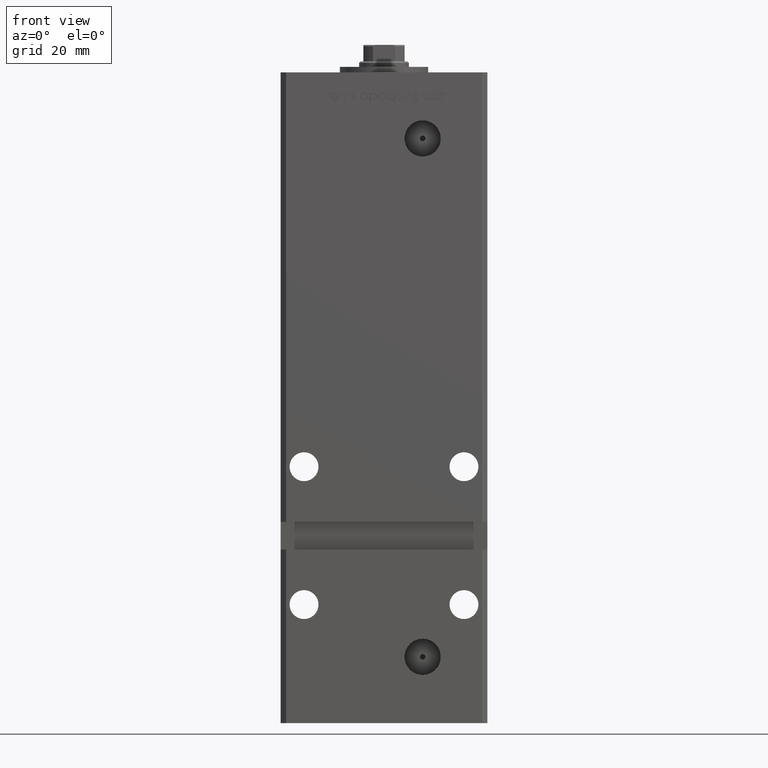
[diagram: clean part render]
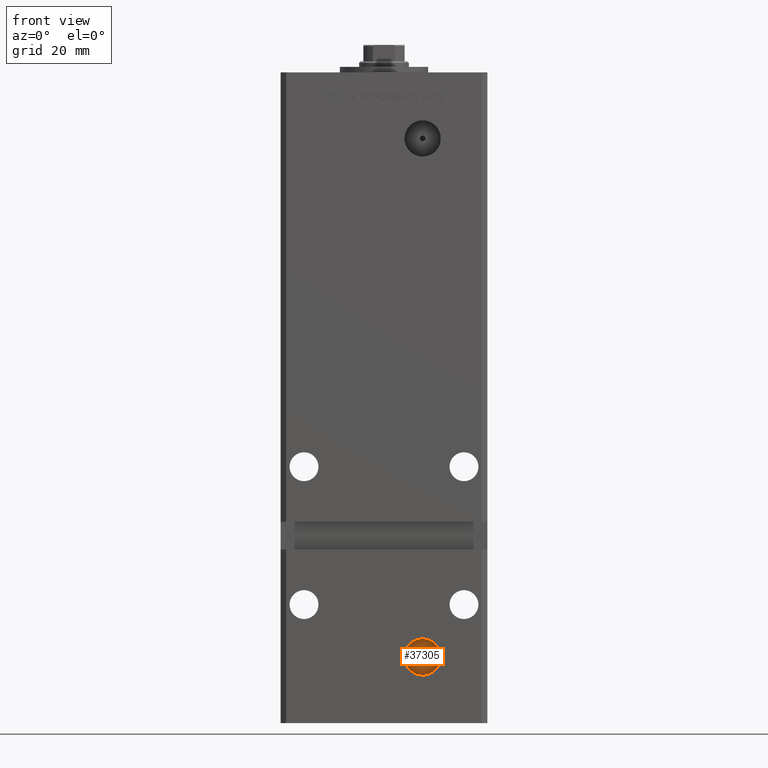
[diagram: same view with one face highlighted and labeled with its STEP entity id]
A machine part, front view. The second image highlights one B-rep face of the part: STEP entity #37305.
In plain terms, the highlighted planar face has unit normal (0, -1, 0).
Its self-contained STEP definition (entity closure, byte-faithful):
#1987 = EDGE_LOOP ( 'NONE', ( #10286, #41266 ) ) ;
#4337 = VERTEX_POINT ( 'NONE', #52843 ) ;
#4850 = EDGE_LOOP ( 'NONE', ( #41444, #25007 ) ) ;
#4863 = CIRCLE ( 'NONE', #35804, 6.579999999999998295 ) ;
#4871 = DIRECTION ( 'NONE',  ( 0.000000000000000000, 0.000000000000000000, -1.000000000000000000 ) ) ;
#7563 = CARTESIAN_POINT ( 'NONE',  ( 13.99999999999999112, -19.50000000000000355, 10.00000000000000888 ) ) ;
#7950 = AXIS2_PLACEMENT_3D ( 'NONE', #26077, #42467, #42732 ) ;
#10286 = ORIENTED_EDGE ( 'NONE', *, *, #31058, .T. ) ;
#10782 = DIRECTION ( 'NONE',  ( 0.000000000000000000, -1.000000000000000000, 0.000000000000000000 ) ) ;
#11118 = VERTEX_POINT ( 'NONE', #7563 ) ;
#12609 = CARTESIAN_POINT ( 'NONE',  ( 13.99999999999999112, -19.50000000000000355, 15.58000000000000718 ) ) ;
#15098 = CIRCLE ( 'NONE', #45160, 1.000000000000000888 ) ;
#15880 = EDGE_CURVE ( 'NONE', #22847, #41880, #48308, .T. ) ;
#16231 = EDGE_CURVE ( 'NONE', #4337, #11118, #32886, .T. ) ;
#18803 = AXIS2_PLACEMENT_3D ( 'NONE', #39798, #51892, #23657 ) ;
#19126 = AXIS2_PLACEMENT_3D ( 'NONE', #27212, #10782, #31236 ) ;
#20996 = DIRECTION ( 'NONE',  ( 0.000000000000000000, 0.000000000000000000, -1.000000000000000000 ) ) ;
#21020 = CARTESIAN_POINT ( 'NONE',  ( 13.99999999999999112, -19.50000000000000355, 9.000000000000007105 ) ) ;
#22847 = VERTEX_POINT ( 'NONE', #12609 ) ;
#23657 = DIRECTION ( 'NONE',  ( 0.000000000000000000, -0.000000000000000000, -1.000000000000000000 ) ) ;
#25007 = ORIENTED_EDGE ( 'NONE', *, *, #48463, .F. ) ;
#25042 = CARTESIAN_POINT ( 'NONE',  ( 13.99999999999999112, -19.50000000000000355, 9.000000000000007105 ) ) ;
#26077 = CARTESIAN_POINT ( 'NONE',  ( 13.99999999999999112, -19.50000000000000355, 9.000000000000007105 ) ) ;
#27212 = CARTESIAN_POINT ( 'NONE',  ( 13.99999999999999112, -19.50000000000000355, 9.000000000000007105 ) ) ;
#27696 = FACE_BOUND ( 'NONE', #4850, .T. ) ;
#28776 = CARTESIAN_POINT ( 'NONE',  ( 13.99999999999999112, -19.50000000000000355, 2.420000000000009699 ) ) ;
#31058 = EDGE_CURVE ( 'NONE', #41880, #22847, #4863, .T. ) ;
#31236 = DIRECTION ( 'NONE',  ( 0.000000000000000000, 0.000000000000000000, -1.000000000000000000 ) ) ;
#32886 = CIRCLE ( 'NONE', #7950, 1.000000000000000888 ) ;
#33115 = DIRECTION ( 'NONE',  ( 0.000000000000000000, -1.000000000000000000, 0.000000000000000000 ) ) ;
#35500 = PLANE ( 'NONE',  #18803 ) ;
#35804 = AXIS2_PLACEMENT_3D ( 'NONE', #21020, #50317, #4871 ) ;
#37305 = ADVANCED_FACE ( 'NONE', ( #27696, #48389 ), #35500, .T. ) ;
#39798 = CARTESIAN_POINT ( 'NONE',  ( 13.99999999999999112, -19.50000000000000355, 9.000000000000007105 ) ) ;
#41266 = ORIENTED_EDGE ( 'NONE', *, *, #15880, .T. ) ;
#41444 = ORIENTED_EDGE ( 'NONE', *, *, #16231, .F. ) ;
#41880 = VERTEX_POINT ( 'NONE', #28776 ) ;
#42467 = DIRECTION ( 'NONE',  ( 0.000000000000000000, -1.000000000000000000, 0.000000000000000000 ) ) ;
#42732 = DIRECTION ( 'NONE',  ( 0.000000000000000000, 0.000000000000000000, -1.000000000000000000 ) ) ;
#45160 = AXIS2_PLACEMENT_3D ( 'NONE', #25042, #33115, #20996 ) ;
#48308 = CIRCLE ( 'NONE', #19126, 6.579999999999998295 ) ;
#48389 = FACE_OUTER_BOUND ( 'NONE', #1987, .T. ) ;
#48463 = EDGE_CURVE ( 'NONE', #11118, #4337, #15098, .T. ) ;
#50317 = DIRECTION ( 'NONE',  ( 0.000000000000000000, -1.000000000000000000, 0.000000000000000000 ) ) ;
#51892 = DIRECTION ( 'NONE',  ( 0.000000000000000000, -1.000000000000000000, 0.000000000000000000 ) ) ;
#52843 = CARTESIAN_POINT ( 'NONE',  ( 13.99999999999999112, -19.50000000000000355, 8.000000000000007105 ) ) ;